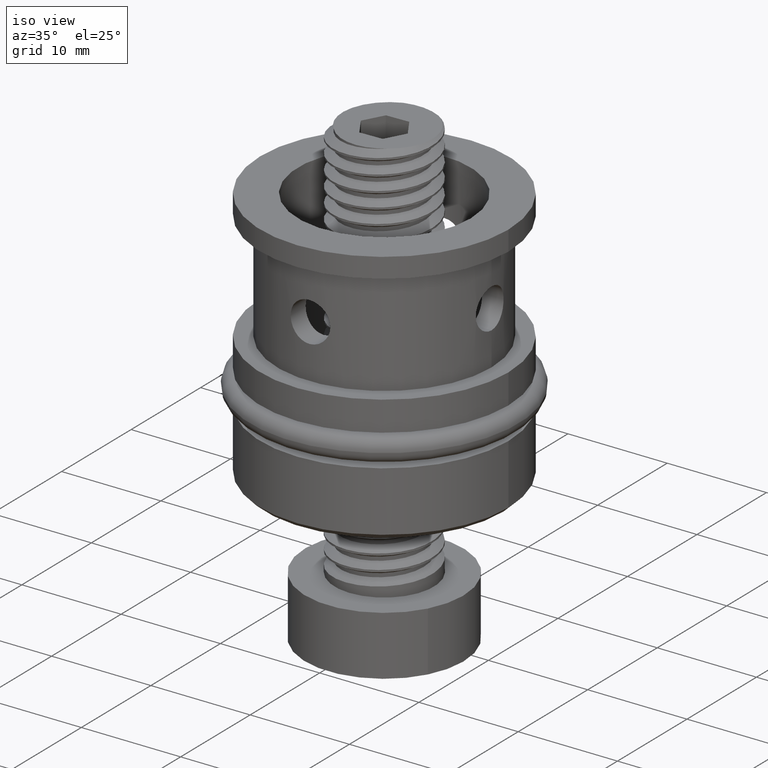
[diagram: clean part render]
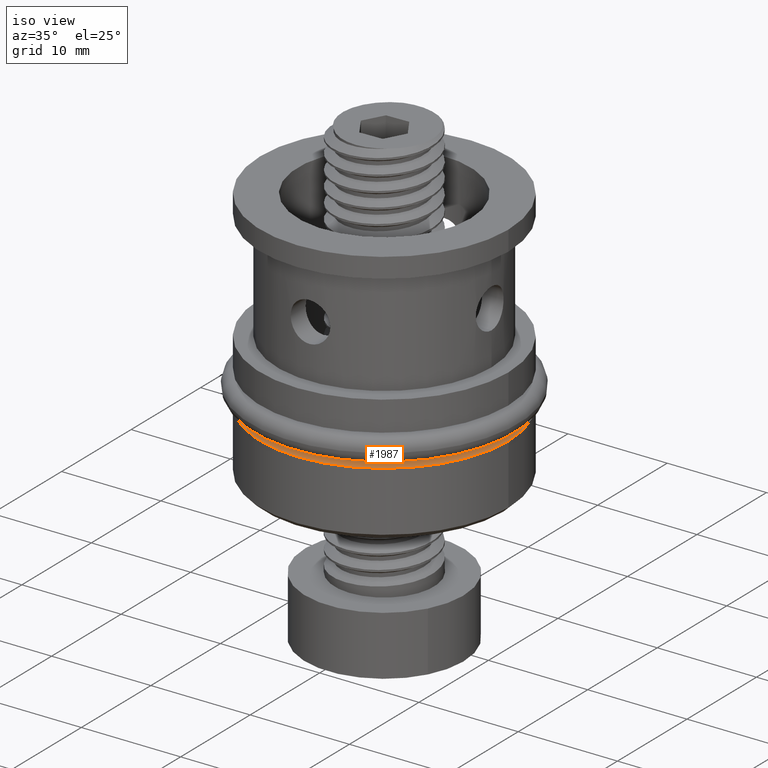
[diagram: same view with one face highlighted and labeled with its STEP entity id]
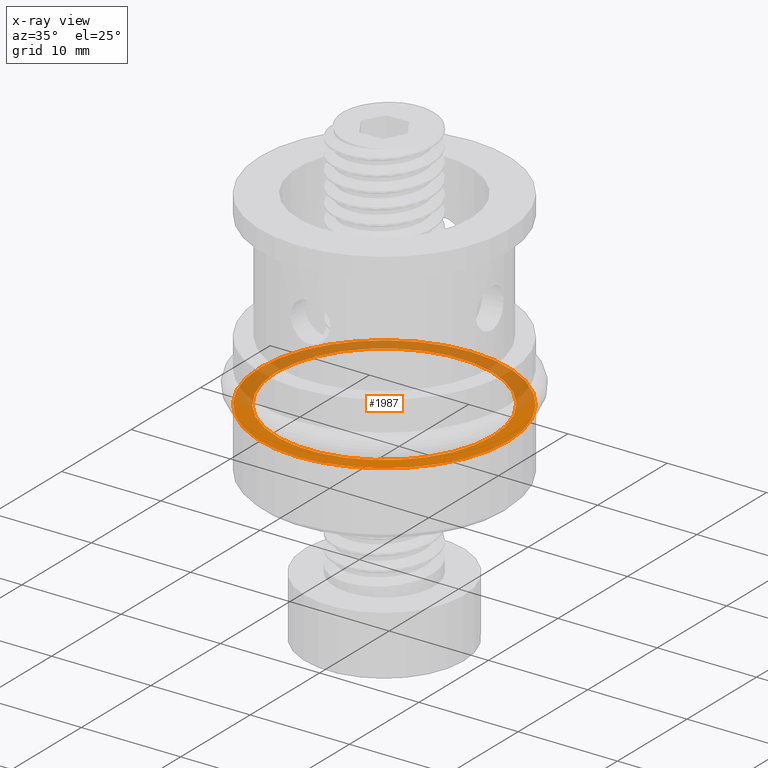
[diagram: x-ray of the same camera — body ghosted, the highlighted face saturated]
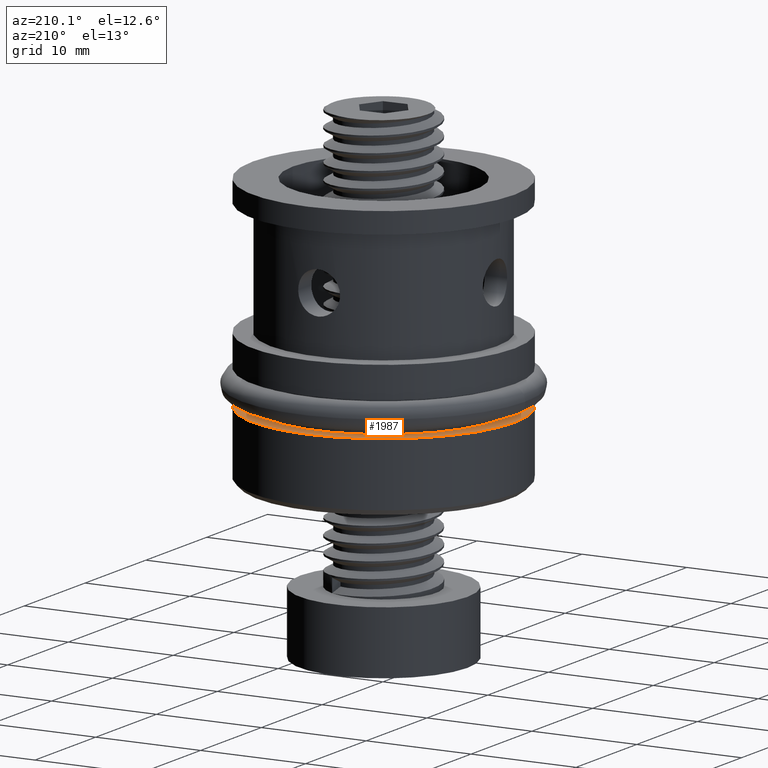
[diagram: same view with one face highlighted and labeled with its STEP entity id]
A machine part, iso view. The second image highlights one B-rep face of the part: STEP entity #1987.
The next image is the same camera in x-ray: the body ghosted, the highlighted face saturated — about 50% of this face is hidden behind the body in this view.
A second angle (auxiliary view) of the same face is appended — the face is thin or edge-on in the first view.
In plain terms, the highlighted planar face has unit normal (0, 0, 1).
Its self-contained STEP definition (entity closure, byte-faithful):
#208 = EDGE_LOOP ( 'NONE', ( #3025 ) ) ;
#223 = EDGE_LOOP ( 'NONE', ( #5984 ) ) ;
#541 = FACE_BOUND ( 'NONE', #208, .T. ) ;
#863 = EDGE_CURVE ( 'NONE', #3419, #3419, #2959, .T. ) ;
#1015 = FACE_OUTER_BOUND ( 'NONE', #223, .T. ) ;
#1043 = AXIS2_PLACEMENT_3D ( 'NONE', #3192, #1865, #6059 ) ;
#1220 = EDGE_CURVE ( 'NONE', #4966, #4966, #2659, .T. ) ;
#1484 = DIRECTION ( 'NONE',  ( 0.0000000000000000000, 0.0000000000000000000, 1.000000000000000000 ) ) ;
#1865 = DIRECTION ( 'NONE',  ( 0.0000000000000000000, 0.0000000000000000000, 1.000000000000000000 ) ) ;
#1987 = ADVANCED_FACE ( 'NONE', ( #541, #1015 ), #4867, .T. ) ;
#2365 = DIRECTION ( 'NONE',  ( 0.0000000000000000000, 0.0000000000000000000, 1.000000000000000000 ) ) ;
#2534 = DIRECTION ( 'NONE',  ( 1.000000000000000000, 0.0000000000000000000, -0.0000000000000000000 ) ) ;
#2659 = CIRCLE ( 'NONE', #3468, 12.50000000000000000 ) ;
#2959 = CIRCLE ( 'NONE', #1043, 10.90000000000000036 ) ;
#3025 = ORIENTED_EDGE ( 'NONE', *, *, #863, .F. ) ;
#3192 = CARTESIAN_POINT ( 'NONE',  ( 0.0000000000000000000, 0.0000000000000000000, 6.550000000000000711 ) ) ;
#3419 = VERTEX_POINT ( 'NONE', #5339 ) ;
#3468 = AXIS2_PLACEMENT_3D ( 'NONE', #5703, #2365, #4759 ) ;
#3550 = CARTESIAN_POINT ( 'NONE',  ( 0.0000000000000000000, 0.0000000000000000000, 6.550000000000000711 ) ) ;
#4175 = AXIS2_PLACEMENT_3D ( 'NONE', #3550, #1484, #2534 ) ;
#4759 = DIRECTION ( 'NONE',  ( 1.000000000000000000, 0.0000000000000000000, 0.0000000000000000000 ) ) ;
#4867 = PLANE ( 'NONE',  #4175 ) ;
#4966 = VERTEX_POINT ( 'NONE', #5845 ) ;
#5339 = CARTESIAN_POINT ( 'NONE',  ( 10.90000000000000036, 0.0000000000000000000, 6.550000000000000711 ) ) ;
#5703 = CARTESIAN_POINT ( 'NONE',  ( 0.0000000000000000000, 0.0000000000000000000, 6.550000000000000711 ) ) ;
#5845 = CARTESIAN_POINT ( 'NONE',  ( 12.50000000000000000, 0.0000000000000000000, 6.550000000000000711 ) ) ;
#5984 = ORIENTED_EDGE ( 'NONE', *, *, #1220, .T. ) ;
#6059 = DIRECTION ( 'NONE',  ( 1.000000000000000000, 0.0000000000000000000, 0.0000000000000000000 ) ) ;